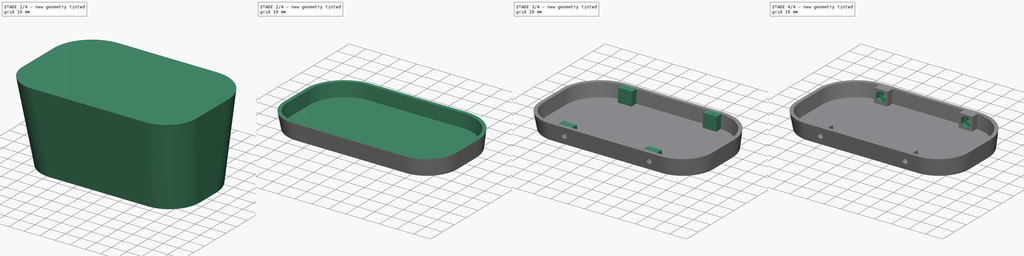
[diagram: build sequence overview — one tinted view per stage of 4, left to right]
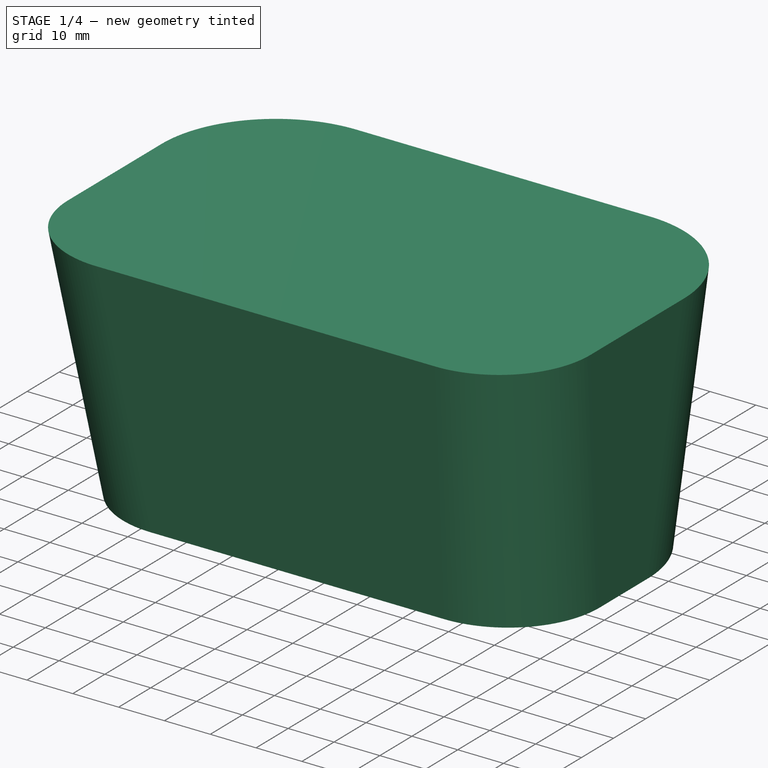
[diagram: stage 1 of 4 — iso view after this stage's code; geometry added in this stage tinted green]
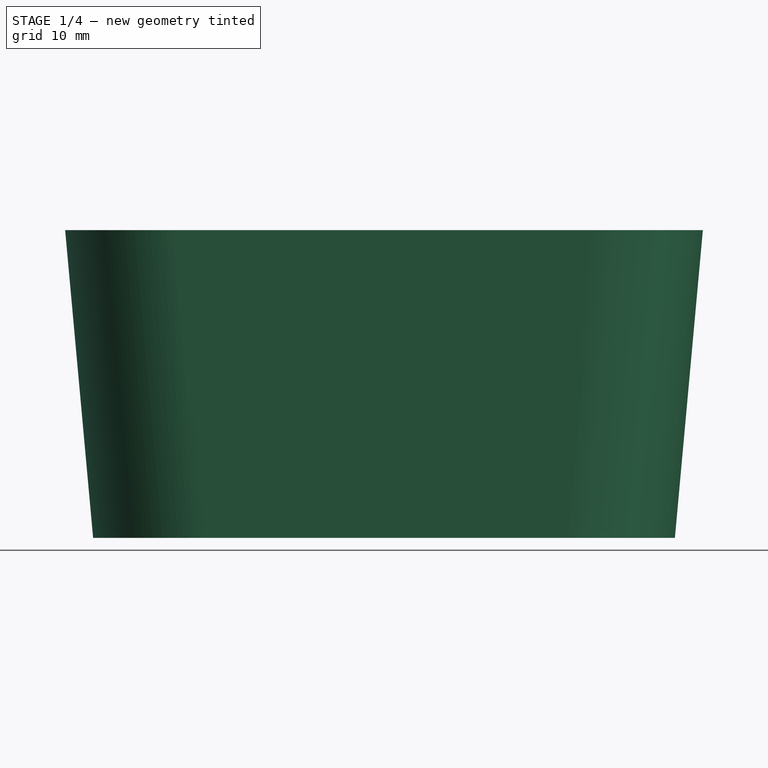
[diagram: stage 1 of 4 — front view after this stage's code; geometry added in this stage tinted green]
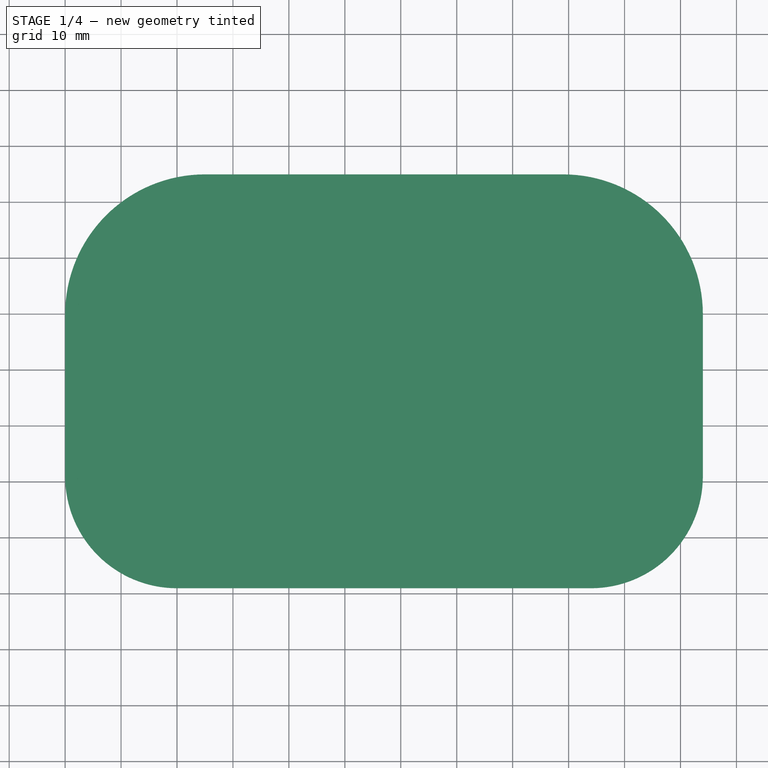
[diagram: stage 1 of 4 — top view after this stage's code; geometry added in this stage tinted green]
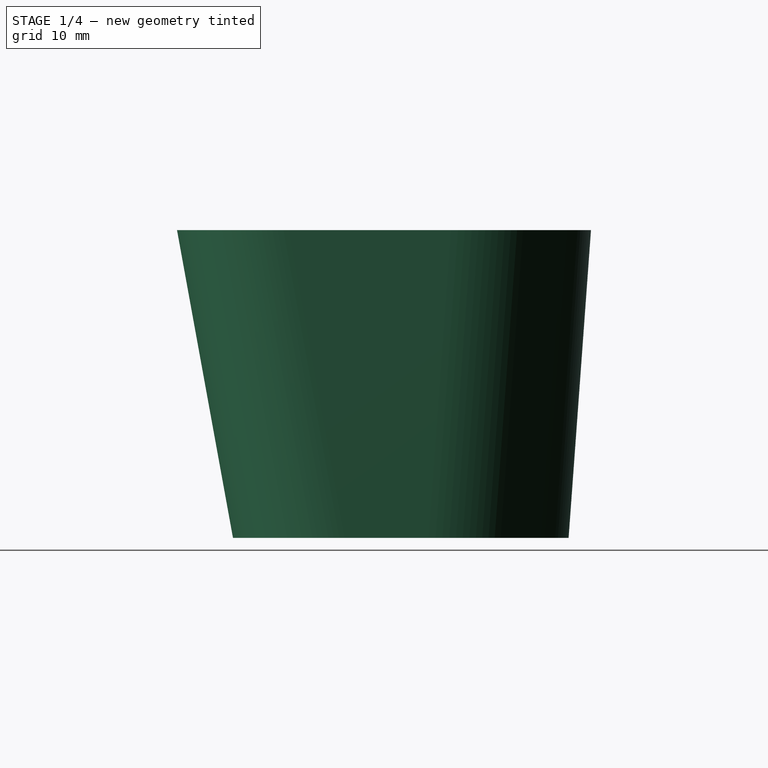
[diagram: stage 1 of 4 — right view after this stage's code; geometry added in this stage tinted green]
FCSTD DOCUMENT  (FreeCAD 0.19R22894 (Git))
Label: Rear_Cover_Plate_Template
License: All rights reserved
LicenseURL: http://en.wikipedia.org/wiki/All_rights_reserved
objects: Sketcher::SketchObject×11, PartDesign::Pocket×5, PartDesign::AdditiveLoft×2, PartDesign::Thickness×2, PartDesign::Body×2, PartDesign::Pad×2, PartDesign::Boolean×1
note: 36 computed .brp shape members not serialized (recipe doc carries the construction recipe); baked Part::Feature solids carry a one-line shape summary decoded from their .brp

FEATURE [Sketcher::SketchObject] Sketch090
  MapMode = 5
  Support = -> [XY_Plane047]
  sketch-geometry (8):
    g0: LineSegment StartX=25 StartY=10 StartZ=0 EndX=89 EndY=10 EndZ=0
    g1: LineSegment StartX=109 StartY=30 StartZ=0 EndX=109 EndY=45 EndZ=0
    g2: LineSegment StartX=84 StartY=70 StartZ=0 EndX=30 EndY=70 EndZ=0
    g3: LineSegment StartX=5 StartY=45 StartZ=0 EndX=5 EndY=30 EndZ=0
    g4: ArcOfCircle CenterX=30 CenterY=45 CenterZ=0 NormalX=0 NormalY=0 NormalZ=1 AngleXU=0 Radius=25 StartAngle=1.5708 EndAngle=3.14159
    g5: ArcOfCircle CenterX=84 CenterY=45 CenterZ=0 NormalX=0 NormalY=0 NormalZ=1 AngleXU=0 Radius=25 StartAngle=0 EndAngle=1.5708
    g6: ArcOfCircle CenterX=89 CenterY=30 CenterZ=0 NormalX=0 NormalY=0 NormalZ=1 AngleXU=0 Radius=20 StartAngle=4.71239 EndAngle=6.28319
    g7: ArcOfCircle CenterX=25 CenterY=30 CenterZ=0 NormalX=0 NormalY=0 NormalZ=1 AngleXU=0 Radius=20 StartAngle=3.14159 EndAngle=4.71239
  constraints (20):
    c: Horizontal(g0)
    c: Horizontal(g2)
    c: Vertical(g1)
    c: Vertical(g3)
    c: Tangent(g3,g4) = -1.5708
    c: Tangent(g2,g4) = -1.5708
    c: Tangent(g2,g5) = -1.5708
    c: Tangent(g1,g5) = -1.5708
    c: Tangent(g1,g6) = -1.5708
    c: Tangent(g0,g6) = -1.5708
    c: Tangent(g0,g7) = -1.5708
    c: Tangent(g3,g7) = -1.5708
    c: Equal(g4,g5)
    c: Equal(g7,g6)
    c: Radius(g5) = 25
    c: Radius(g6) = 20
    c: DistanceY(g0,g2) = 60
    c: DistanceX(g3,g1) = 104
    c: DistanceY(g-1,g0) = 10
    c: DistanceX(g-1,g3) = 5
FEATURE [Sketcher::SketchObject] Sketch093
  AttachmentOffset = pos=(0,0,55) rot=(0,0,1;0rad)
  MapMode = 5
  Placement = pos=(0,0,55) rot=(0,0,1;0rad)
  Support = -> [XY_Plane048]
  sketch-geometry (8):
    g0: LineSegment StartX=25 StartY=74 StartZ=0 EndX=89 EndY=74 EndZ=0
    g1: LineSegment StartX=114 StartY=49 StartZ=0 EndX=114 EndY=20 EndZ=0
    g2: LineSegment StartX=94 StartY=0 StartZ=0 EndX=20 EndY=0 EndZ=0
    g3: LineSegment StartX=0 StartY=20 StartZ=0 EndX=0 EndY=49 EndZ=0
    g4: ArcOfCircle CenterX=20 CenterY=20 CenterZ=0 NormalX=0 NormalY=0 NormalZ=1 AngleXU=0 Radius=20 StartAngle=3.14159 EndAngle=4.71239
    g5: ArcOfCircle CenterX=25 CenterY=49 CenterZ=0 NormalX=0 NormalY=0 NormalZ=1 AngleXU=0 Radius=25 StartAngle=1.5708 EndAngle=3.14159
    g6: ArcOfCircle CenterX=89 CenterY=49 CenterZ=0 NormalX=0 NormalY=0 NormalZ=1 AngleXU=0 Radius=25 StartAngle=0 EndAngle=1.5708
    g7: ArcOfCircle CenterX=94 CenterY=20 CenterZ=0 NormalX=0 NormalY=0 NormalZ=1 AngleXU=0 Radius=20 StartAngle=4.71239 EndAngle=6.28319
  constraints (20):
    c: Horizontal(g0)
    c: Horizontal(g2)
    c: Vertical(g1)
    c: Vertical(g3)
    c: Tangent(g2,g4) = 1.5708
    c: Tangent(g3,g4) = 1.5708
    c: Tangent(g3,g5) = 1.5708
    c: Tangent(g0,g5) = 1.5708
    c: Tangent(g0,g6) = 1.5708
    c: Tangent(g1,g6) = 1.5708
    c: Tangent(g1,g7) = 1.5708
    c: Tangent(g2,g7) = 1.5708
    c: Equal(g4,g7)
    c: Equal(g5,g6)
    c: Radius(g6) = 25
    c: Radius(g7) = 20
    c: PointOnObject(g2,g-1)
    c: PointOnObject(g3,g-2)
    c: DistanceX(g3,g1) = 114
    c: DistanceY(g2,g0) = 74
FEATURE [Sketcher::SketchObject] Sketch094
  MapMode = 5
  Support = -> [XY_Plane048]
  sketch-geometry (8):
    g0: LineSegment StartX=25 StartY=10 StartZ=0 EndX=89 EndY=10 EndZ=0
    g1: LineSegment StartX=109 StartY=30 StartZ=0 EndX=109 EndY=45 EndZ=0
    g2: LineSegment StartX=84 StartY=70 StartZ=0 EndX=30 EndY=70 EndZ=0
    g3: LineSegment StartX=5 StartY=45 StartZ=0 EndX=5 EndY=30 EndZ=0
    g4: ArcOfCircle CenterX=30 CenterY=45 CenterZ=0 NormalX=0 NormalY=0 NormalZ=1 AngleXU=0 Radius=25 StartAngle=1.5708 EndAngle=3.14159
    g5: ArcOfCircle CenterX=84 CenterY=45 CenterZ=0 NormalX=0 NormalY=0 NormalZ=1 AngleXU=0 Radius=25 StartAngle=0 EndAngle=1.5708
    g6: ArcOfCircle CenterX=89 CenterY=30 CenterZ=0 NormalX=0 NormalY=0 NormalZ=1 AngleXU=0 Radius=20 StartAngle=4.71239 EndAngle=6.28319
    g7: ArcOfCircle CenterX=25 CenterY=30 CenterZ=0 NormalX=0 NormalY=0 NormalZ=1 AngleXU=0 Radius=20 StartAngle=3.14159 EndAngle=4.71239
  constraints (20):
    c: Horizontal(g0)
    c: Horizontal(g2)
    c: Vertical(g1)
    c: Vertical(g3)
    c: Tangent(g3,g4) = -1.5708
    c: Tangent(g2,g4) = -1.5708
    c: Tangent(g2,g5) = -1.5708
    c: Tangent(g1,g5) = -1.5708
    c: Tangent(g1,g6) = -1.5708
    c: Tangent(g0,g6) = -1.5708
    c: Tangent(g0,g7) = -1.5708
    c: Tangent(g3,g7) = -1.5708
    c: Equal(g4,g5)
    c: Equal(g7,g6)
    c: Radius(g5) = 25
    c: Radius(g6) = 20
    c: DistanceY(g0,g2) = 60
    c: DistanceX(g3,g1) = 104
    c: DistanceY(g-1,g0) = 10
    c: DistanceX(g-1,g3) = 5
FEATURE [PartDesign::AdditiveLoft] AdditiveLoft002  label="Baseplate001"
  AllowMultiFace = false
  Closed = false
  Profile = -> Sketch094
  Ruled = false
  Sections = -> [Sketch093]
FEATURE [PartDesign::Thickness] Thickness002  label="Make Shell"
  Base = -> AdditiveLoft002 [Face3]
  BaseFeature = -> AdditiveLoft002
  Intersection = false
  Join = 0
  Mode = 0
  Reversed = true
  SupportTransform = false
  Value = 2.25
FEATURE [PartDesign::Body] Body033  label="Rear_Cover_long"
  Group = -> [Sketch093,Sketch094,AdditiveLoft002,Thickness002]
  Origin = -> Origin049
  Tip = -> Thickness002
FEATURE [Sketcher::SketchObject] Sketch092
  AttachmentOffset = pos=(0,0,55) rot=(0,0,1;0rad)
  MapMode = 5
  Placement = pos=(0,0,55) rot=(0,0,1;0rad)
  Support = -> [XY_Plane047]
  sketch-geometry (8):
    g0: LineSegment StartX=25 StartY=74 StartZ=0 EndX=89 EndY=74 EndZ=0
    g1: LineSegment StartX=114 StartY=49 StartZ=0 EndX=114 EndY=20 EndZ=0
    g2: LineSegment StartX=94 StartY=0 StartZ=0 EndX=20 EndY=0 EndZ=0
    g3: LineSegment StartX=0 StartY=20 StartZ=0 EndX=0 EndY=49 EndZ=0
    g4: ArcOfCircle CenterX=20 CenterY=20 CenterZ=0 NormalX=0 NormalY=0 NormalZ=1 AngleXU=0 Radius=20 StartAngle=3.14159 EndAngle=4.71239
    g5: ArcOfCircle CenterX=25 CenterY=49 CenterZ=0 NormalX=0 NormalY=0 NormalZ=1 AngleXU=0 Radius=25 StartAngle=1.5708 EndAngle=3.14159
    g6: ArcOfCircle CenterX=89 CenterY=49 CenterZ=0 NormalX=0 NormalY=0 NormalZ=1 AngleXU=0 Radius=25 StartAngle=0 EndAngle=1.5708
    g7: ArcOfCircle CenterX=94 CenterY=20 CenterZ=0 NormalX=0 NormalY=0 NormalZ=1 AngleXU=0 Radius=20 StartAngle=4.71239 EndAngle=6.28319
  constraints (20):
    c: Horizontal(g0)
    c: Horizontal(g2)
    c: Vertical(g1)
    c: Vertical(g3)
    c: Tangent(g2,g4) = 1.5708
    c: Tangent(g3,g4) = 1.5708
    c: Tangent(g3,g5) = 1.5708
    c: Tangent(g0,g5) = 1.5708
    c: Tangent(g0,g6) = 1.5708
    c: Tangent(g1,g6) = 1.5708
    c: Tangent(g1,g7) = 1.5708
    c: Tangent(g2,g7) = 1.5708
    c: Equal(g4,g7)
    c: Equal(g5,g6)
    c: Radius(g6) = 25
    c: Radius(g7) = 20
    c: PointOnObject(g2,g-1)
    c: PointOnObject(g3,g-2)
    c: DistanceX(g3,g1) = 114
    c: DistanceY(g2,g0) = 74
FEATURE [PartDesign::AdditiveLoft] AdditiveLoft001  label="Baseplate"
  AllowMultiFace = false
  Closed = false
  Profile = -> Sketch090
  Ruled = false
  Sections = -> [Sketch092]
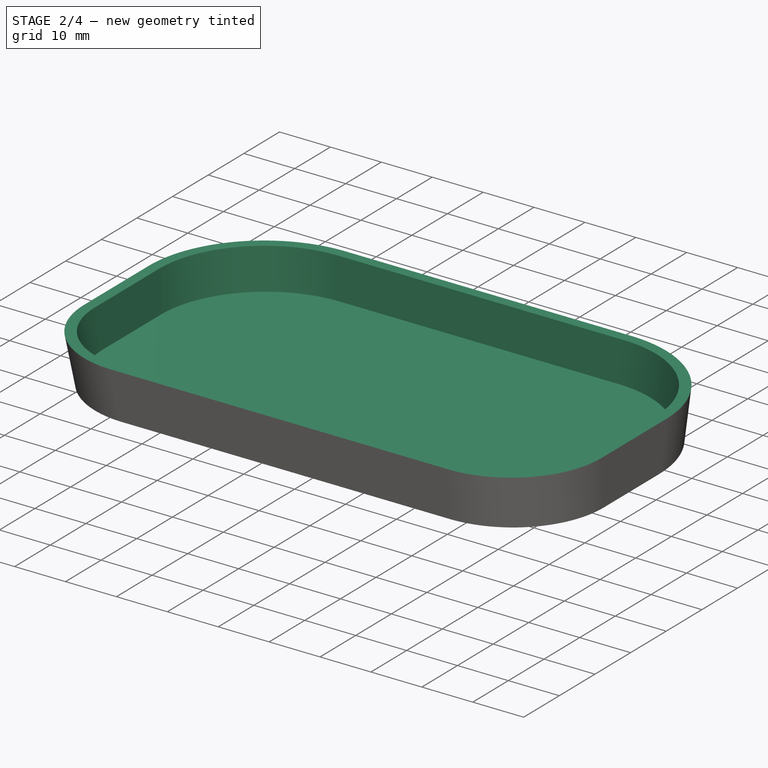
[diagram: stage 2 of 4 — iso view after this stage's code; geometry added in this stage tinted green]
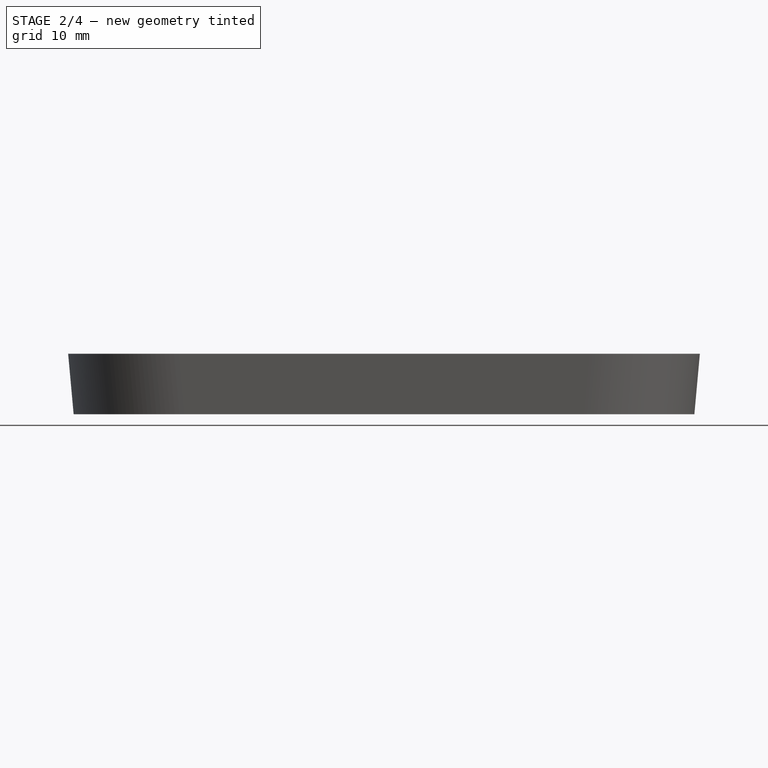
[diagram: stage 2 of 4 — front view after this stage's code; geometry added in this stage tinted green]
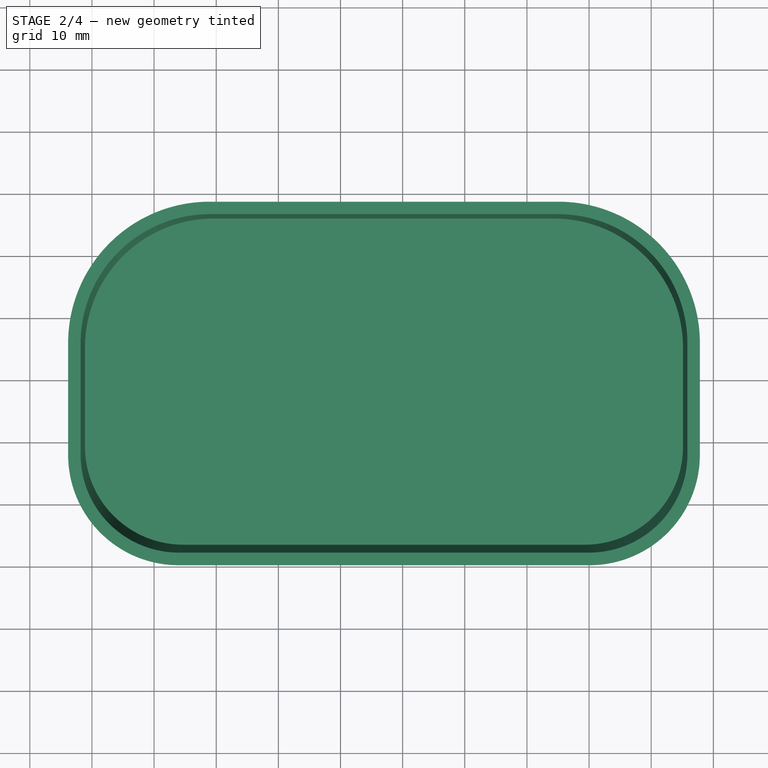
[diagram: stage 2 of 4 — top view after this stage's code; geometry added in this stage tinted green]
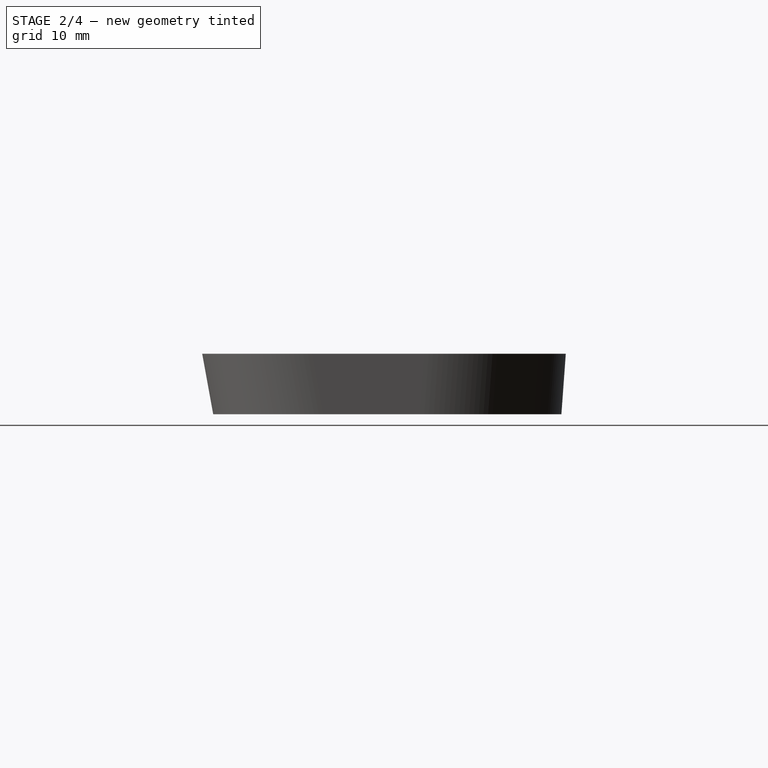
[diagram: stage 2 of 4 — right view after this stage's code; geometry added in this stage tinted green]
FEATURE [PartDesign::Thickness] Thickness001  label="Make Thick Shell"
  Base = -> AdditiveLoft001 [Face3]
  BaseFeature = -> AdditiveLoft001
  Intersection = false
  Join = 0
  Mode = 0
  Reversed = true
  SupportTransform = false
  Value = 4.25
FEATURE [PartDesign::Boolean] Boolean
  BaseFeature = -> Thickness001
  Group = -> [Body033]
  Type = 1
FEATURE [Sketcher::SketchObject] Sketch095
  MapMode = 5
  Placement = pos=(0,0,55) rot=(0,0,1;0rad)
  Support = -> [Boolean]
  sketch-geometry (4):
    g0: LineSegment StartX=0 StartY=0 StartZ=0 EndX=118 EndY=0 EndZ=0
    g1: LineSegment StartX=118 StartY=0 StartZ=0 EndX=118 EndY=75 EndZ=0
    g2: LineSegment StartX=118 StartY=75 StartZ=0 EndX=0 EndY=75 EndZ=0
    g3: LineSegment StartX=0 StartY=75 StartZ=0 EndX=0 EndY=0 EndZ=0
  constraints (11):
    c: Coincident(g0,g1)
    c: Coincident(g1,g2)
    c: Coincident(g2,g3)
    c: Coincident(g3,g0)
    c: Horizontal(g0)
    c: Horizontal(g2)
    c: Vertical(g1)
    c: Vertical(g3)
    c: Coincident(g0,g-1)
    c: DistanceX(g2,g2) = 118
    c: DistanceY(g1,g1) = 75
FEATURE [PartDesign::Pocket] Pocket033  label="Shorten Shell"
  AllowMultiFace = false
  BaseFeature = -> Boolean
  Length = 43
  Length2 = 100
  Profile = -> Sketch095
  Type = 0
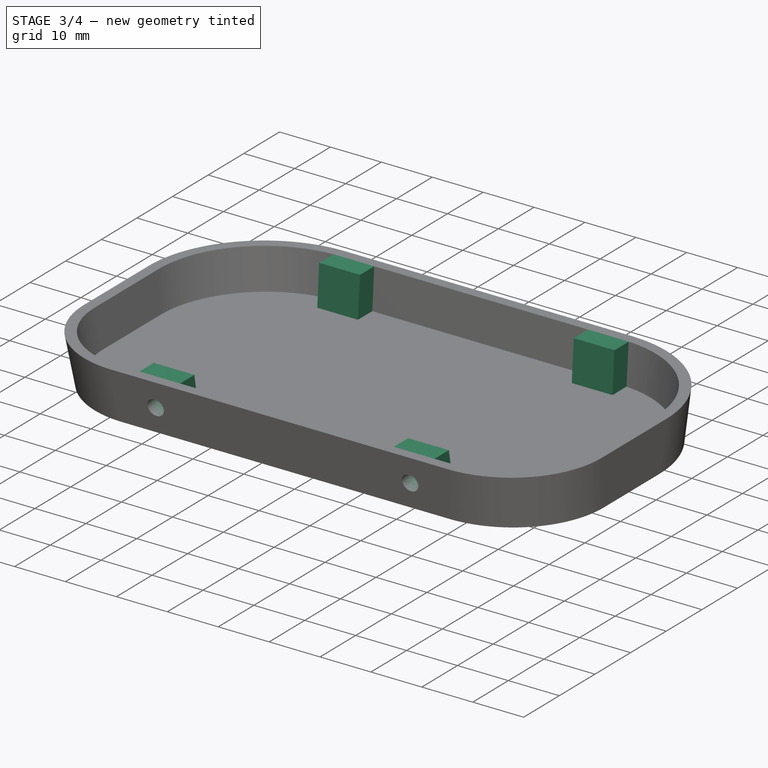
[diagram: stage 3 of 4 — iso view after this stage's code; geometry added in this stage tinted green]
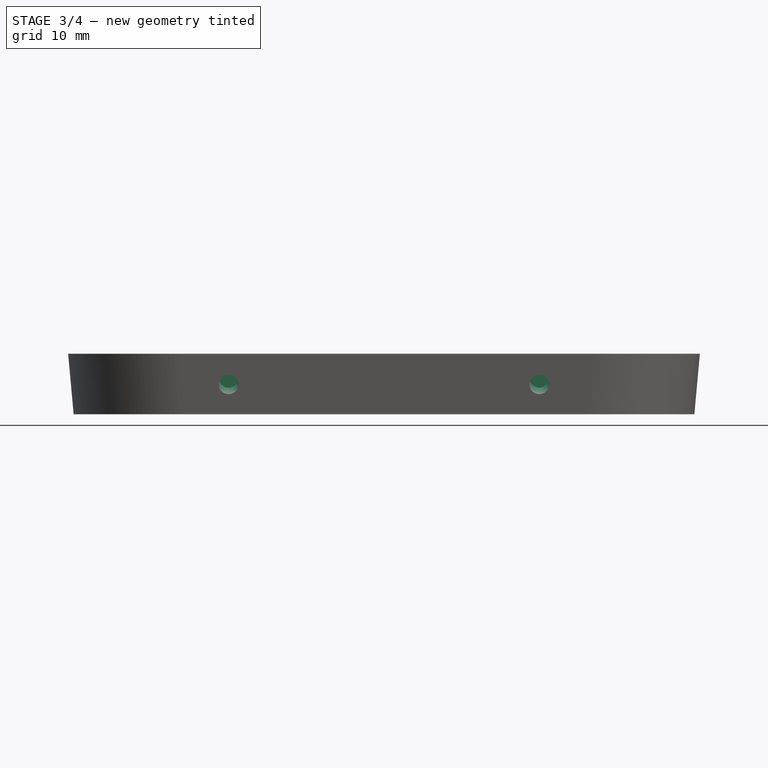
[diagram: stage 3 of 4 — front view after this stage's code; geometry added in this stage tinted green]
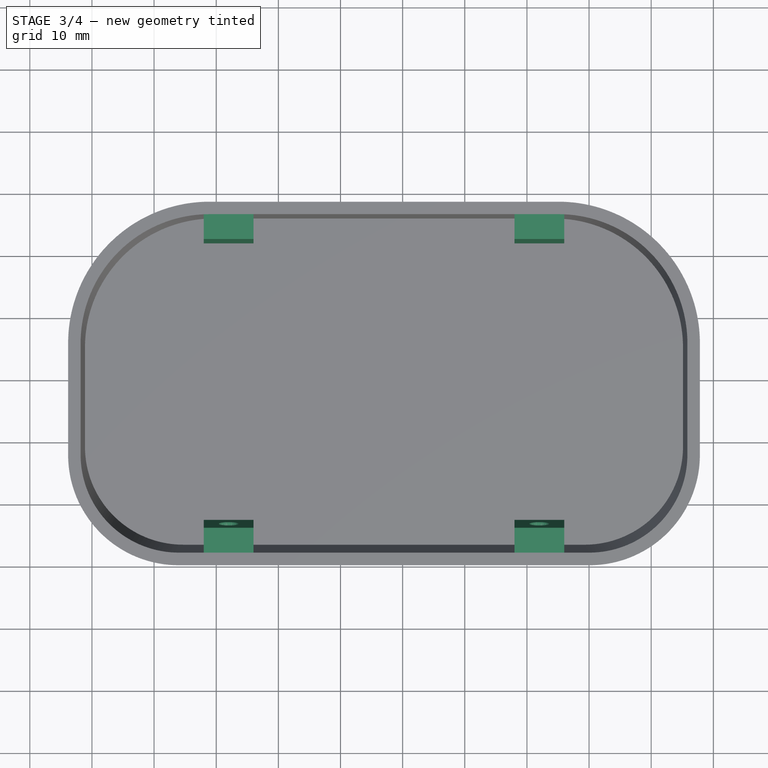
[diagram: stage 3 of 4 — top view after this stage's code; geometry added in this stage tinted green]
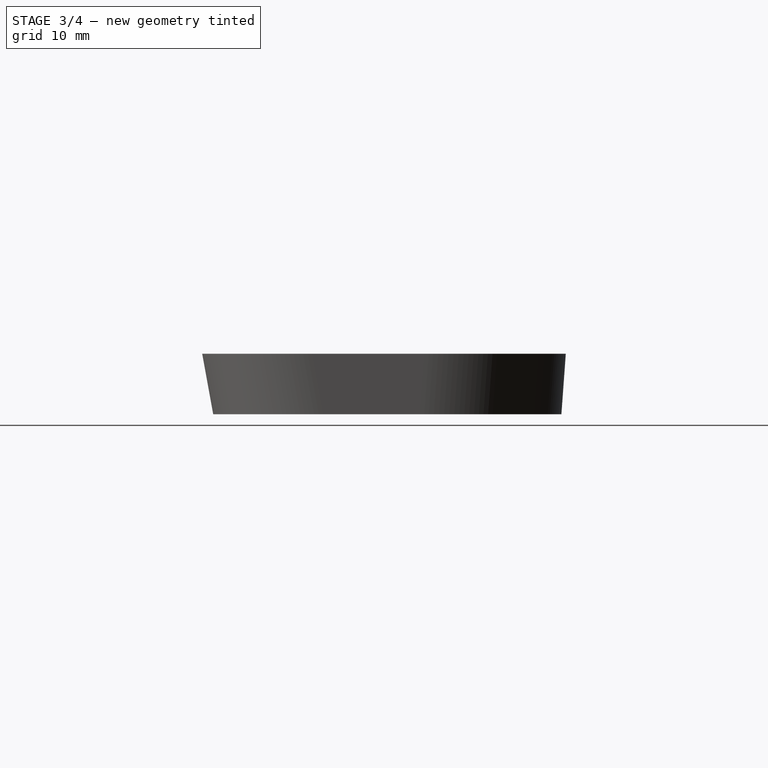
[diagram: stage 3 of 4 — right view after this stage's code; geometry added in this stage tinted green]
FEATURE [Sketcher::SketchObject] Sketch254
  AttachmentOffset = pos=(0,0,32) rot=(0,0,1;0rad)
  ExternalGeometry = -> [Pocket033]
  MapMode = 5
  Placement = pos=(32,-7.1e-15,7.1e-15) rot=(0.57735,0.57735,0.57735;2.0944rad)
  Support = -> [YZ_Plane047]
  sketch-geometry (8):
    g0: LineSegment StartX=12.1379 StartY=12 StartZ=0 EndX=13.5469 EndY=4.25 EndZ=0
    g1: LineSegment StartX=13.5469 StartY=4.25 StartZ=0 EndX=17.5469 EndY=4.25 EndZ=0
    g2: LineSegment StartX=17.5469 StartY=4.25 StartZ=0 EndX=16.1379 EndY=12 EndZ=0
    g3: LineSegment StartX=16.1379 StartY=12 StartZ=0 EndX=12.1379 EndY=12 EndZ=0
    g4: LineSegment StartX=66.0479 StartY=4.25 StartZ=0 EndX=62.0479 EndY=4.25 EndZ=0
    g5: LineSegment StartX=62.0479 StartY=4.25 StartZ=0 EndX=62.6115 EndY=12 EndZ=0
    g6: LineSegment StartX=62.6115 StartY=12 StartZ=0 EndX=66.6115 EndY=12 EndZ=0
    g7: LineSegment StartX=66.6115 StartY=12 StartZ=0 EndX=66.0479 EndY=4.25 EndZ=0
  constraints (20):
    c: Coincident(g0,g-3)
    c: Coincident(g0,g-3)
    c: Coincident(g0,g1)
    c: Horizontal(g1)
    c: Coincident(g1,g2)
    c: Coincident(g2,g3)
    c: Horizontal(g3)
    c: Coincident(g3,g0)
    c: Parallel(g2,g0)
    c: DistanceX(g3,g3) = 4
    c: Horizontal(g4)
    c: Coincident(g4,g5)
    c: Coincident(g5,g6)
    c: Coincident(g6,g-4)
    c: Horizontal(g6)
    c: Coincident(g6,g7)
    c: Coincident(g7,g4)
    c: Parallel(g7,g5)
    c: Coincident(g4,g-4)
    c: DistanceX(g6,g6) = 4
FEATURE [PartDesign::Pad] Pad112  label="Add Screwpads right"
  AllowMultiFace = false
  BaseFeature = -> Pocket033
  Direction = (1,1,1)
  Length = 4
  Length2 = 4
  Profile = -> Sketch254
  Type = 4
FEATURE [Sketcher::SketchObject] Sketch255
  AttachmentOffset = pos=(0,0,82) rot=(0,0,1;0rad)
  ExternalGeometry = -> [Pocket033]
  MapMode = 5
  Placement = pos=(82,-1.82e-14,1.82e-14) rot=(0.57735,0.57735,0.57735;2.0944rad)
  Support = -> [YZ_Plane047]
  sketch-geometry (8):
    g0: LineSegment StartX=12.1379 StartY=12 StartZ=0 EndX=13.5469 EndY=4.25 EndZ=0
    g1: LineSegment StartX=13.5469 StartY=4.25 StartZ=0 EndX=17.5469 EndY=4.25 EndZ=0
    g2: LineSegment StartX=17.5469 StartY=4.25 StartZ=0 EndX=16.1379 EndY=12 EndZ=0
    g3: LineSegment StartX=16.1379 StartY=12 StartZ=0 EndX=12.1379 EndY=12 EndZ=0
    g4: LineSegment StartX=66.0479 StartY=4.25 StartZ=0 EndX=62.0479 EndY=4.25 EndZ=0
    g5: LineSegment StartX=62.0479 StartY=4.25 StartZ=0 EndX=62.6115 EndY=12 EndZ=0
    g6: LineSegment StartX=62.6115 StartY=12 StartZ=0 EndX=66.6115 EndY=12 EndZ=0
    g7: LineSegment StartX=66.6115 StartY=12 StartZ=0 EndX=66.0479 EndY=4.25 EndZ=0
  constraints (20):
    c: Coincident(g0,g-3)
    c: Coincident(g0,g-3)
    c: Coincident(g0,g1)
    c: Horizontal(g1)
    c: Coincident(g1,g2)
    c: Coincident(g2,g3)
    c: Horizontal(g3)
    c: Coincident(g3,g0)
    c: Parallel(g2,g0)
    c: DistanceX(g3,g3) = 4
    c: Horizontal(g4)
    c: Coincident(g4,g5)
    c: Coincident(g5,g6)
    c: Coincident(g6,g-4)
    c: Horizontal(g6)
    c: Coincident(g6,g7)
    c: Coincident(g7,g4)
    c: Parallel(g7,g5)
    c: Coincident(g4,g-4)
    c: DistanceX(g6,g6) = 4
FEATURE [PartDesign::Pad] Pad113  label="Add Screwpads left"
  AllowMultiFace = false
  BaseFeature = -> Pad112
  Direction = (1,1,1)
  Length = 4
  Length2 = 4
  Profile = -> Sketch255
  Type = 4
FEATURE [Sketcher::SketchObject] Sketch256
  ExternalGeometry = -> [Pad113]
  MapMode = 5
  Placement = pos=(3e-15,17.7334,3.22426) rot=(0,0.640747,0.767752;3.14159rad)
  Support = -> [Pad113]
  sketch-geometry (5):
    g0: Circle CenterX=-82 CenterY=4.98108 CenterZ=0 NormalX=0 NormalY=0 NormalZ=1 AngleXU=0 Radius=1.6
    g1: Circle CenterX=-32 CenterY=4.98108 CenterZ=0 NormalX=0 NormalY=0 NormalZ=1 AngleXU=0 Radius=1.6
    g2: LineSegment [constr] StartX=-86 StartY=8.91961 StartZ=0 EndX=-82 EndY=4.98108 EndZ=0
    g3: LineSegment [constr] StartX=-82 StartY=4.98108 StartZ=0 EndX=-78 EndY=8.91961 EndZ=0
    g4: LineSegment [constr] StartX=-78 StartY=1.04255 StartZ=0 EndX=-82 EndY=4.98108 EndZ=0
  constraints (12):
    c: Equal(g1,g0)
    c: Radius(g0) = 1.6
    c: Horizontal(g0,g1)
    c: DistanceX(g0,g1) = 50
    c: Coincident(g2,g-3)
    c: Coincident(g2,g0)
    c: Coincident(g3,g0)
    c: Coincident(g3,g-3)
    c: Equal(g2,g3)
    c: Coincident(g4,g-4)
    c: Coincident(g4,g0)
    c: Equal(g4,g3)
FEATURE [PartDesign::Pocket] Pocket115  label="Add Screwholes top"
  AllowMultiFace = false
  BaseFeature = -> Pad113
  Length = 10
  Length2 = 100
  Profile = -> Sketch256
  Type = 0
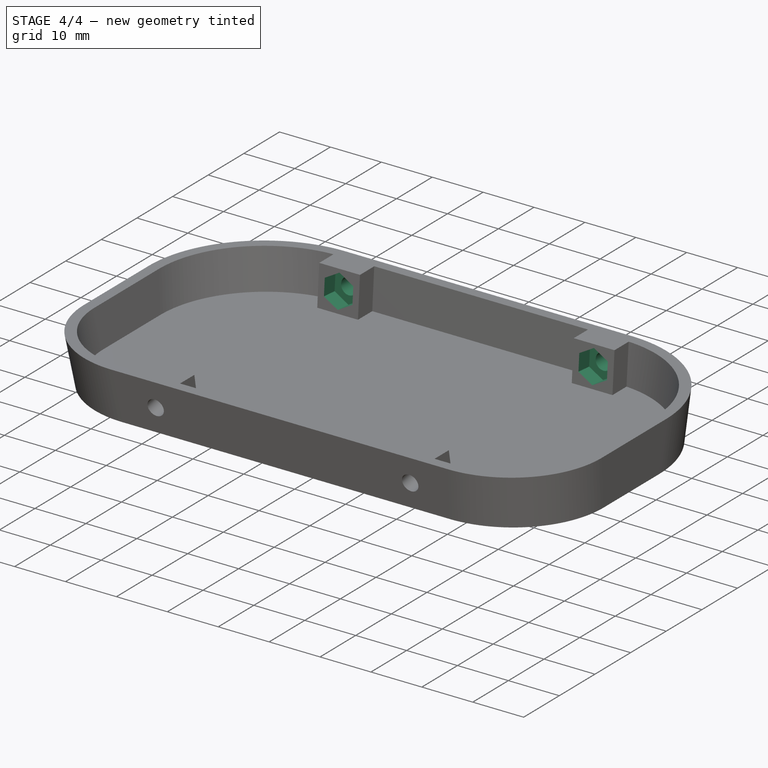
[diagram: stage 4 of 4 — iso view after this stage's code; geometry added in this stage tinted green]
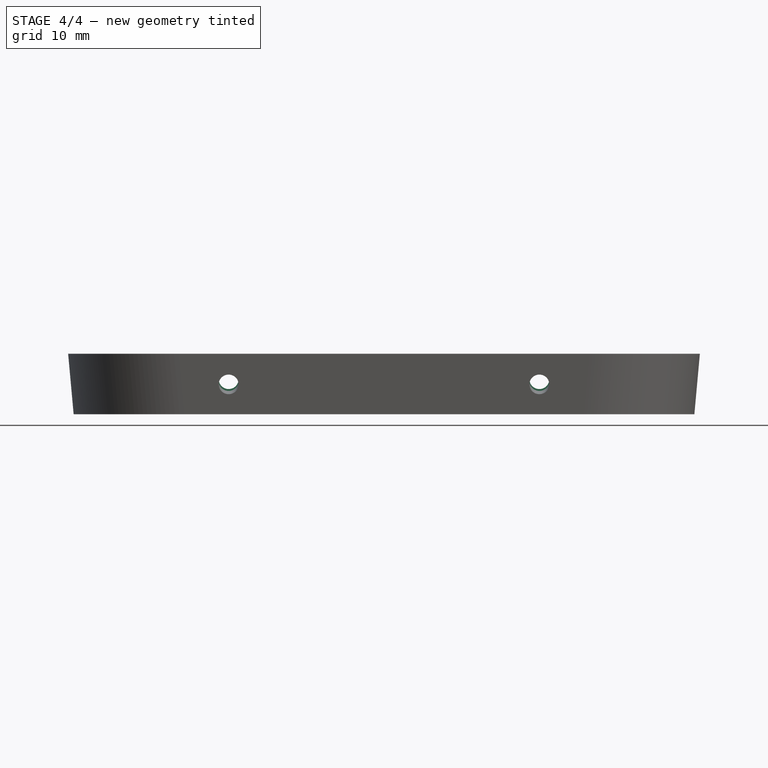
[diagram: stage 4 of 4 — front view after this stage's code; geometry added in this stage tinted green]
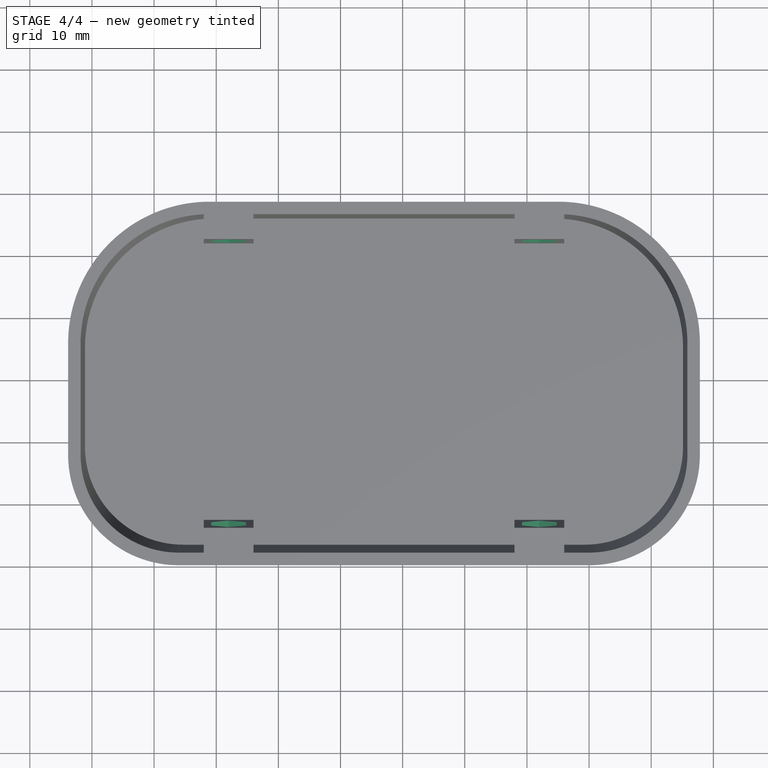
[diagram: stage 4 of 4 — top view after this stage's code; geometry added in this stage tinted green]
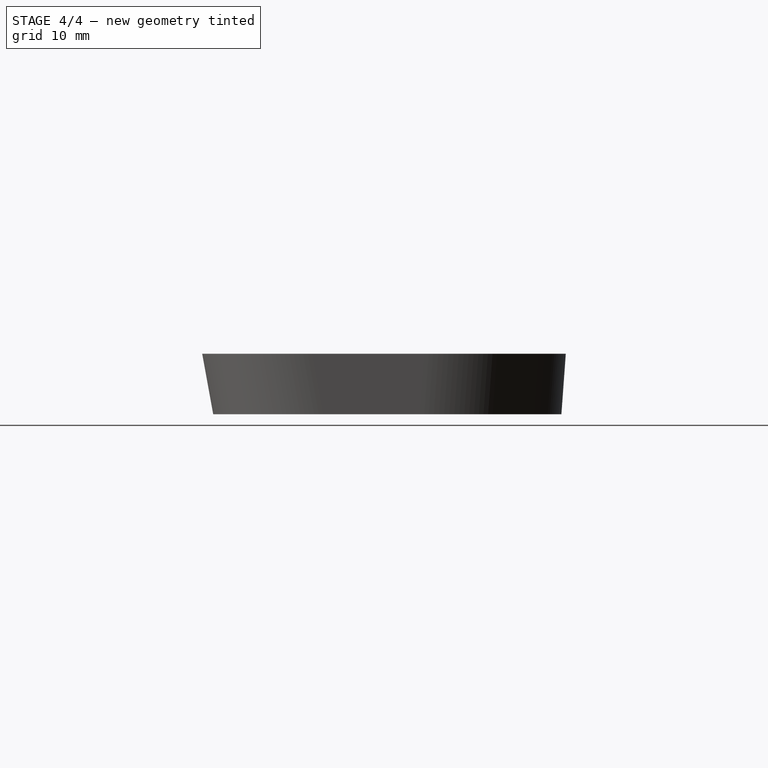
[diagram: stage 4 of 4 — right view after this stage's code; geometry added in this stage tinted green]
FEATURE [Sketcher::SketchObject] Sketch257
  ExternalGeometry = -> [Pocket115]
  MapMode = 5
  Placement = pos=(3e-15,17.7334,3.22426) rot=(0,0.640747,0.767752;3.14159rad)
  Support = -> [Pocket115]
  sketch-geometry (14):
    g0: LineSegment StartX=-82 StartY=8.21424 StartZ=0 EndX=-84.8 EndY=6.59766 EndZ=0
    g1: LineSegment StartX=-84.8 StartY=6.59766 StartZ=0 EndX=-84.8 EndY=3.3645 EndZ=0
    g2: LineSegment StartX=-84.8 StartY=3.3645 StartZ=0 EndX=-82 EndY=1.74792 EndZ=0
    g3: LineSegment StartX=-82 StartY=1.74792 StartZ=0 EndX=-79.2 EndY=3.3645 EndZ=0
    g4: LineSegment StartX=-79.2 StartY=3.3645 StartZ=0 EndX=-79.2 EndY=6.59766 EndZ=0
    g5: LineSegment StartX=-79.2 StartY=6.59766 StartZ=0 EndX=-82 EndY=8.21424 EndZ=0
    g6: Circle [constr] CenterX=-82 CenterY=4.98108 CenterZ=0 NormalX=0 NormalY=0 NormalZ=1 AngleXU=0 Radius=3.23316
    g7: LineSegment StartX=-32 StartY=8.21424 StartZ=0 EndX=-34.8 EndY=6.59766 EndZ=0
    g8: LineSegment StartX=-34.8 StartY=6.59766 StartZ=0 EndX=-34.8 EndY=3.3645 EndZ=0
    g9: LineSegment StartX=-34.8 StartY=3.3645 StartZ=0 EndX=-32 EndY=1.74792 EndZ=0
    g10: LineSegment StartX=-32 StartY=1.74792 StartZ=0 EndX=-29.2 EndY=3.3645 EndZ=0
    g11: LineSegment StartX=-29.2 StartY=3.3645 StartZ=0 EndX=-29.2 EndY=6.59766 EndZ=0
    g12: LineSegment StartX=-29.2 StartY=6.59766 StartZ=0 EndX=-32 EndY=8.21424 EndZ=0
    g13: Circle [constr] CenterX=-32 CenterY=4.98108 CenterZ=0 NormalX=0 NormalY=0 NormalZ=1 AngleXU=0 Radius=3.23316
  constraints (33):
    c: Coincident(g0,g1)
    c: Coincident(g1,g2)
    c: Coincident(g2,g3)
    c: Coincident(g3,g4)
    c: Coincident(g4,g5)
    c: Coincident(g5,g0)
    c: Equal(g0, g1-g5) x5
    c: PointOnObject(g0,g6)
    c: PointOnObject(g1,g6)
    c: PointOnObject(g2,g6)
    c: PointOnObject(g3,g6)
    c: PointOnObject(g4,g6)
    c: PointOnObject(g5,g6)
    c: Coincident(g7,g8)
    c: Coincident(g8,g9)
    c: Coincident(g9,g10)
    c: Coincident(g10,g11)
    c: Coincident(g11,g12)
    c: Coincident(g12,g7)
    c: Equal(g7, g8-g12) x5
    c: PointOnObject(g7,g13)
    c: PointOnObject(g8,g13)
    c: PointOnObject(g9,g13)
    c: PointOnObject(g10,g13)
    c: PointOnObject(g11,g13)
    c: PointOnObject(g12,g13)
    c: Coincident(g6,g-3)
    c: Vertical(g1)
    c: Vertical(g8)
    c: Equal(g6,g13)
    c: DistanceX(g0,g4) = 5.6
    c: Horizontal(g13,g6)
    c: DistanceX(g6,g13) = 50
FEATURE [PartDesign::Pocket] Pocket116  label="Add Screwholes bottom"
  AllowMultiFace = false
  BaseFeature = -> Pocket115
  Length = 3
  Length2 = 100
  Profile = -> Sketch257
  Type = 0
FEATURE [Sketcher::SketchObject] Sketch258
  ExternalGeometry = -> [Pocket116]
  MapMode = 5
  Placement = pos=(1.49e-14,61.4139,-4.46647) rot=(1,0,0;1.4982rad)
  Support = -> [Pocket116]
  sketch-geometry (5):
    g0: Circle CenterX=32 CenterY=12.6247 CenterZ=0 NormalX=0 NormalY=0 NormalZ=1 AngleXU=0 Radius=1.6
    g1: Circle CenterX=82 CenterY=12.6247 CenterZ=0 NormalX=0 NormalY=0 NormalZ=1 AngleXU=0 Radius=1.6
    g2: LineSegment [constr] StartX=28 StartY=16.51 StartZ=0 EndX=32 EndY=12.6247 EndZ=0
    g3: LineSegment [constr] StartX=32 StartY=12.6247 StartZ=0 EndX=36 EndY=16.51 EndZ=0
    g4: LineSegment [constr] StartX=32 StartY=12.6247 StartZ=0 EndX=36 EndY=8.73949 EndZ=0
  constraints (12):
    c: Horizontal(g0,g1)
    c: Equal(g1,g0)
    c: DistanceX(g0,g1) = 50
    c: Coincident(g2,g-3)
    c: Coincident(g2,g0)
    c: Coincident(g3,g0)
    c: Coincident(g3,g-3)
    c: Coincident(g4,g0)
    c: Coincident(g4,g-4)
    c: Equal(g2,g3)
    c: Equal(g3,g4)
    c: Radius(g0) = 1.6
FEATURE [PartDesign::Pocket] Pocket117  label="Add Nutpockets top"
  AllowMultiFace = false
  BaseFeature = -> Pocket116
  Length = 10
  Length2 = 100
  Profile = -> Sketch258
  Type = 0
FEATURE [Sketcher::SketchObject] Sketch259
  ExternalGeometry = -> [Pocket117]
  MapMode = 5
  Placement = pos=(1.49e-14,61.4139,-4.46647) rot=(1,0,0;1.4982rad)
  Support = -> [Pocket117]
  sketch-geometry (14):
    g0: LineSegment StartX=32 StartY=15.8579 StartZ=0 EndX=29.2 EndY=14.2413 EndZ=0
    g1: LineSegment StartX=29.2 StartY=14.2413 StartZ=0 EndX=29.2 EndY=11.0081 EndZ=0
    g2: LineSegment StartX=29.2 StartY=11.0081 StartZ=0 EndX=32 EndY=9.39156 EndZ=0
    g3: LineSegment StartX=32 StartY=9.39156 StartZ=0 EndX=34.8 EndY=11.0081 EndZ=0
    g4: LineSegment StartX=34.8 StartY=11.0081 StartZ=0 EndX=34.8 EndY=14.2413 EndZ=0
    g5: LineSegment StartX=34.8 StartY=14.2413 StartZ=0 EndX=32 EndY=15.8579 EndZ=0
    g6: Circle [constr] CenterX=32 CenterY=12.6247 CenterZ=0 NormalX=0 NormalY=0 NormalZ=1 AngleXU=0 Radius=3.23316
    g7: LineSegment StartX=82 StartY=15.8579 StartZ=0 EndX=79.2 EndY=14.2413 EndZ=0
    g8: LineSegment StartX=79.2 StartY=14.2413 StartZ=0 EndX=79.2 EndY=11.0081 EndZ=0
    g9: LineSegment StartX=79.2 StartY=11.0081 StartZ=0 EndX=82 EndY=9.39156 EndZ=0
    g10: LineSegment StartX=82 StartY=9.39156 StartZ=0 EndX=84.8 EndY=11.0081 EndZ=0
    g11: LineSegment StartX=84.8 StartY=11.0081 StartZ=0 EndX=84.8 EndY=14.2413 EndZ=0
    g12: LineSegment StartX=84.8 StartY=14.2413 StartZ=0 EndX=82 EndY=15.8579 EndZ=0
    g13: Circle [constr] CenterX=82 CenterY=12.6247 CenterZ=0 NormalX=0 NormalY=0 NormalZ=1 AngleXU=0 Radius=3.23316
  constraints (33):
    c: Coincident(g0,g1)
    c: Coincident(g1,g2)
    c: Coincident(g2,g3)
    c: Coincident(g3,g4)
    c: Coincident(g4,g5)
    c: Coincident(g5,g0)
    c: Equal(g0, g1-g5) x5
    c: PointOnObject(g0,g6)
    c: PointOnObject(g1,g6)
    c: PointOnObject(g2,g6)
    c: PointOnObject(g3,g6)
    c: PointOnObject(g4,g6)
    c: PointOnObject(g5,g6)
    c: Coincident(g7,g8)
    c: Coincident(g8,g9)
    c: Coincident(g9,g10)
    c: Coincident(g10,g11)
    c: Coincident(g11,g12)
    c: Coincident(g12,g7)
    c: Equal(g7, g8-g12) x5
    c: PointOnObject(g7,g13)
    c: PointOnObject(g8,g13)
    c: PointOnObject(g9,g13)
    c: PointOnObject(g10,g13)
    c: PointOnObject(g11,g13)
    c: PointOnObject(g12,g13)
    c: Vertical(g4)
    c: Vertical(g8)
    c: Equal(g13,g6)
    c: Coincident(g-3,g6)
    c: Horizontal(g6,g13)
    c: DistanceX(g6,g13) = 50
    c: DistanceX(g0,g4) = 5.6
FEATURE [PartDesign::Pocket] Pocket118  label="Add Nutpockets bottom"
  AllowMultiFace = false
  BaseFeature = -> Pocket117
  Length = 3
  Length2 = 100
  Profile = -> Sketch259
  Type = 0
FEATURE [PartDesign::Body] Body032  label="Rear_Cover_Plate_Template"
  Group = -> [Sketch092,Sketch090,AdditiveLoft001,Thickness001,Boolean,Sketch095,Pocket033,Sketch254,Pad112,Sketch255,Pad113,Sketch256,Pocket115,Sketch257,Pocket116,Sketch258,Pocket117,Sketch259,Pocket118]
  Origin = -> Origin048
  Placement = pos=(0,0,-0.25) rot=(0,0,1;0rad)
  Tip = -> Pocket118
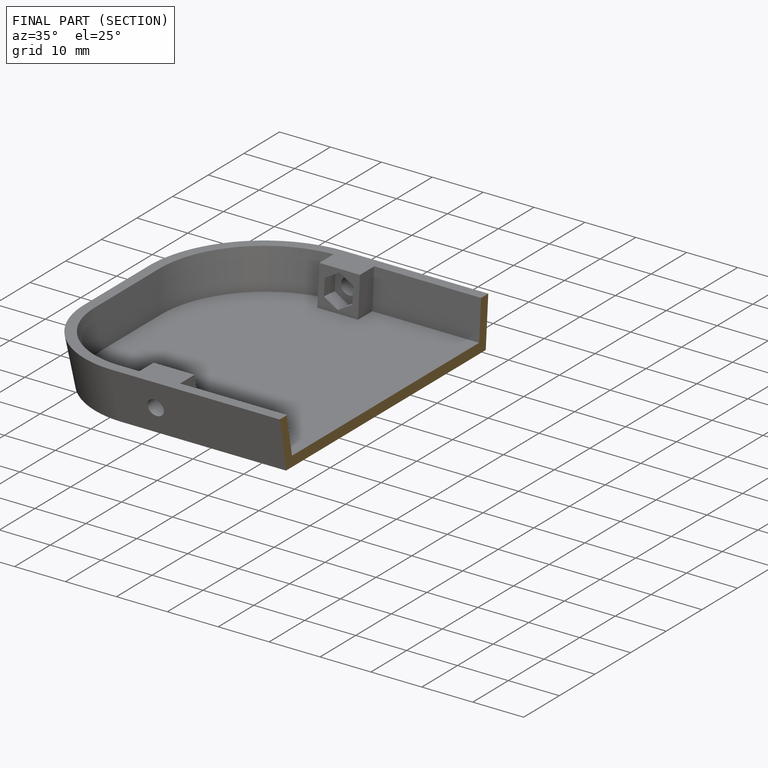
[diagram: finished part — half-section view (interior)]
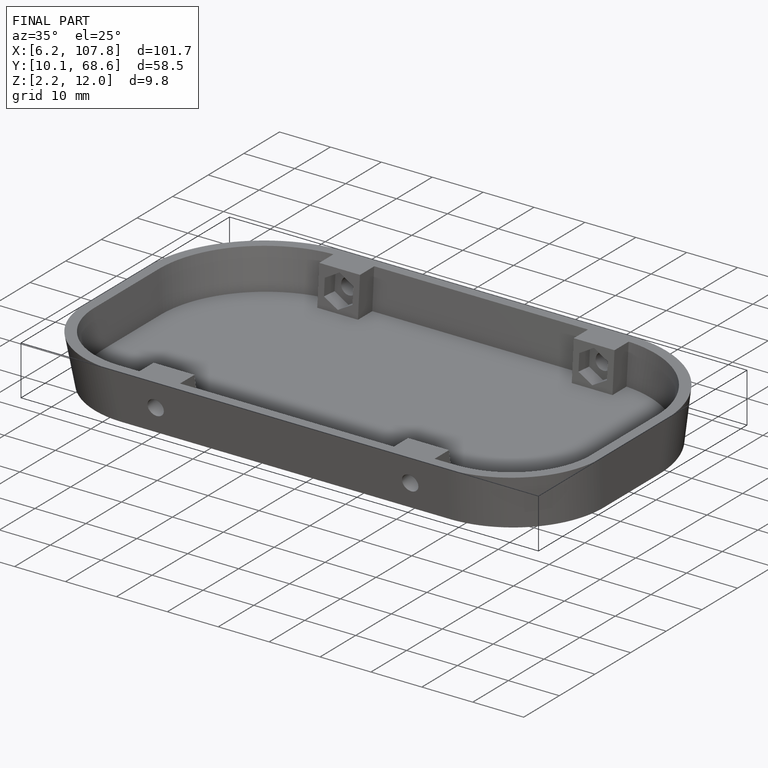
[diagram: finished part — iso view with bounding-box wireframe]
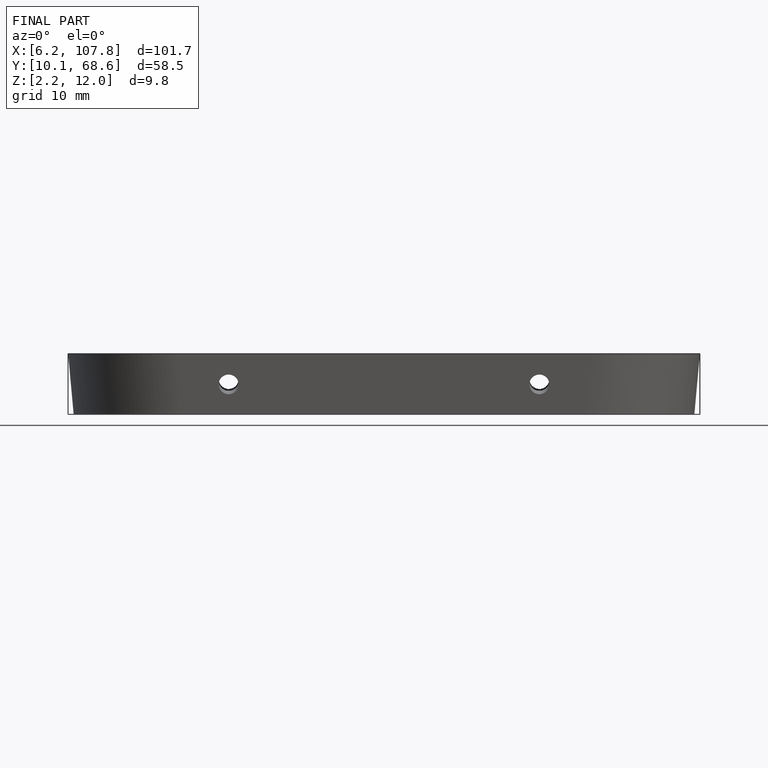
[diagram: finished part — front view with bounding-box wireframe]
